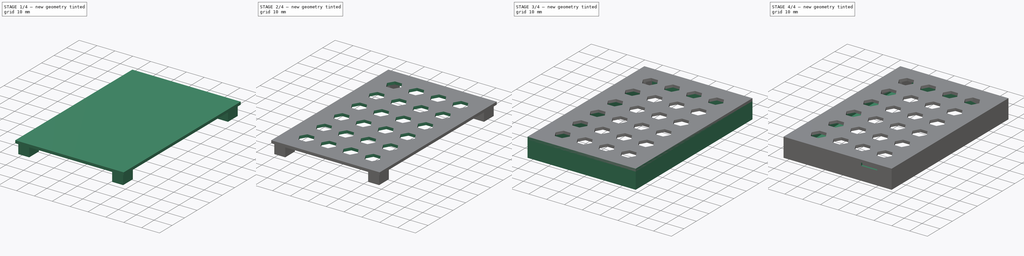
[diagram: build sequence overview — one tinted view per stage of 4, left to right]
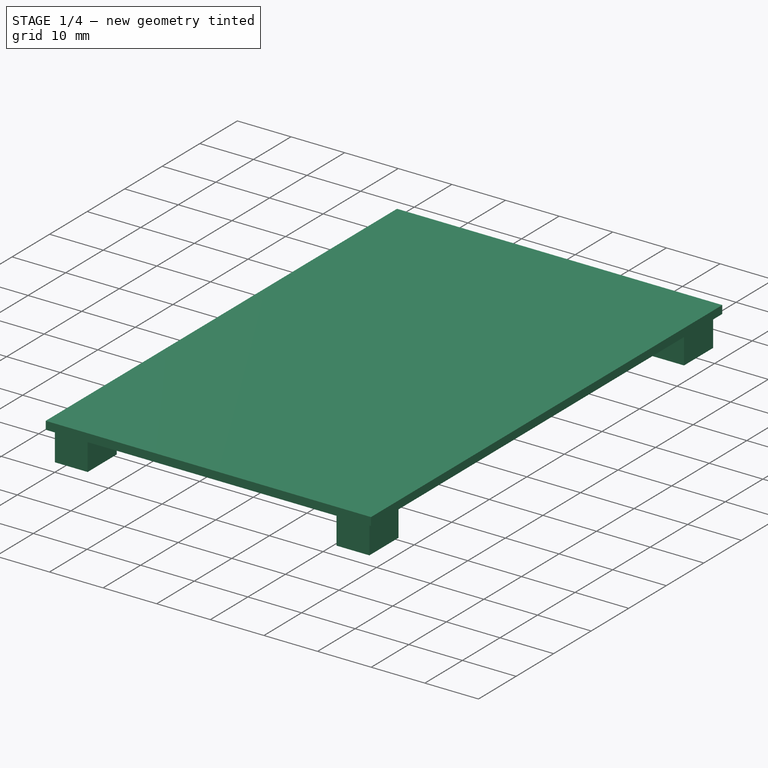
[diagram: stage 1 of 4 — iso view after this stage's code; geometry added in this stage tinted green]
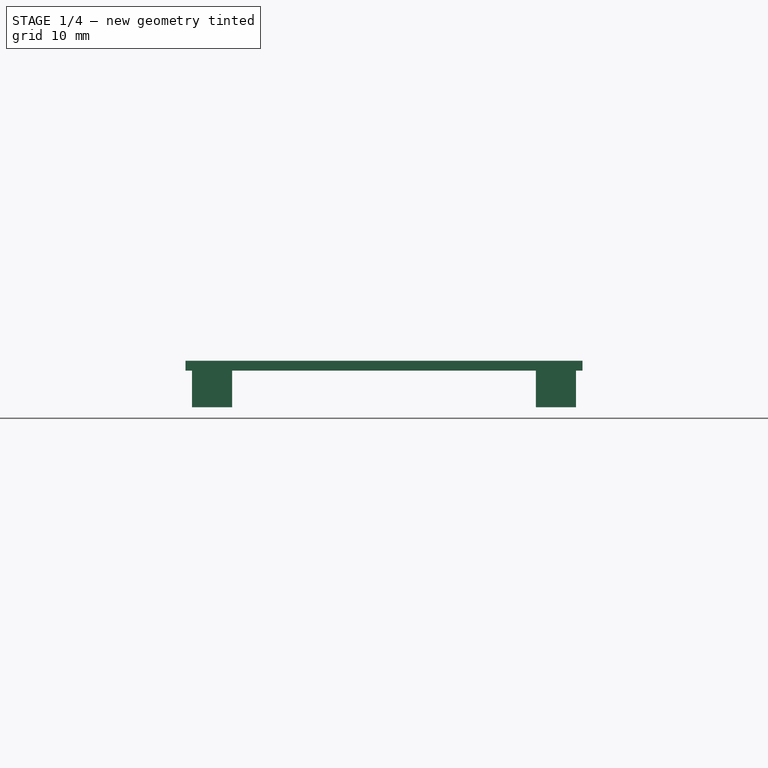
[diagram: stage 1 of 4 — front view after this stage's code; geometry added in this stage tinted green]
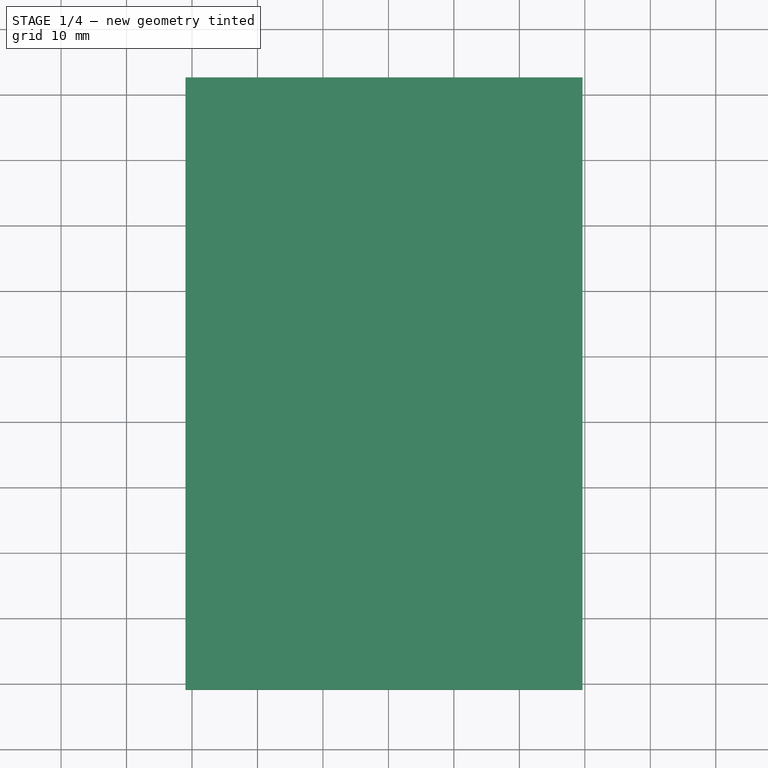
[diagram: stage 1 of 4 — top view after this stage's code; geometry added in this stage tinted green]
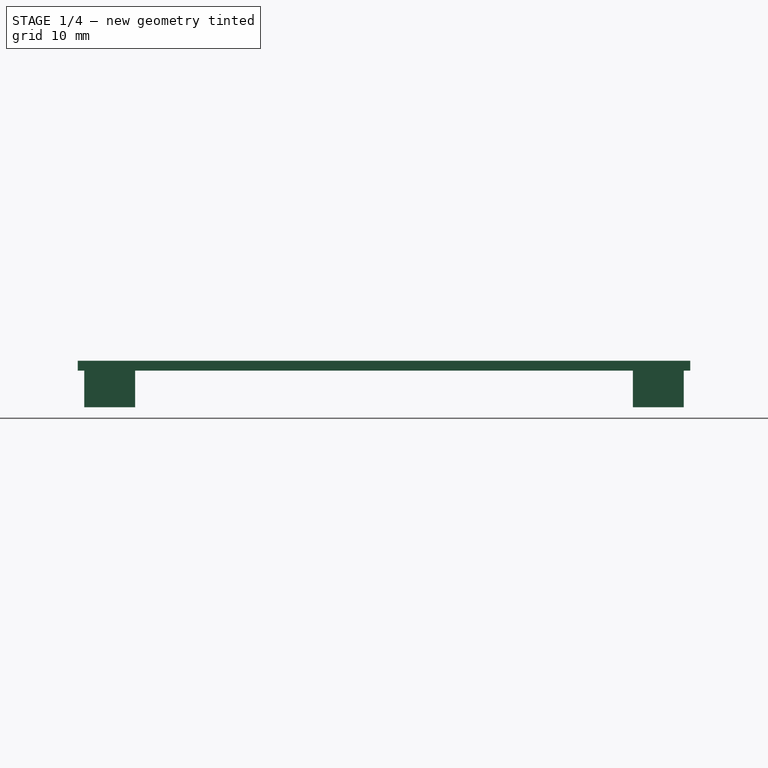
[diagram: stage 1 of 4 — right view after this stage's code; geometry added in this stage tinted green]
FCSTD DOCUMENT  (FreeCAD 1.0R39285 (Git))
Label: wt32-sc01_case1
License: Creative Commons Attribution-NonCommercial-ShareAlike 4.0
LicenseURL: https://creativecommons.org/licenses/by-nc-sa/4.0/
objects: Sketcher::SketchObject×5, PartDesign::Pad×5, PartDesign::Pocket×3, PartDesign::Body×2, PartDesign::LinearPattern×2, PartDesign::ShapeBinder×1, PartDesign::MultiTransform×1
note: 43 computed .brp shape members not serialized (recipe doc carries the construction recipe); baked Part::Feature solids carry a one-line shape summary decoded from their .brp

FEATURE [PartDesign::Body] Body  label="Top"
  AllowCompound = false
  Group = -> [Sketch,Pad,Pocket,Sketch001,Pocket001]
  Origin = -> Origin
  Tip = -> Pocket001
FEATURE [PartDesign::ShapeBinder] ShapeBinder
  Support = -> [Sketch]
  TraceSupport = false
FEATURE [Sketcher::SketchObject] Sketch002
  ArcFitTolerance = 1e-06
  AttachmentSupport = -> [XY_Plane001]
  ExternalGeometry = -> [ShapeBinder]
  FullyConstrained = true
  MakeInternals = false
  MapMode = 5
  sketch-geometry (24):
    g0: LineSegment StartX=0 StartY=0 StartZ=0 EndX=6.12 EndY=0 EndZ=0
    g1: LineSegment StartX=6.12 StartY=0 StartZ=0 EndX=6.12 EndY=7.76 EndZ=0
    g2: LineSegment StartX=6.12 StartY=7.76 StartZ=0 EndX=0 EndY=7.76 EndZ=0
    g3: LineSegment StartX=0 StartY=7.76 StartZ=0 EndX=0 EndY=0 EndZ=0
    g4: LineSegment StartX=58.65 StartY=0 StartZ=0 EndX=58.65 EndY=7.76 EndZ=0
    g5: LineSegment StartX=58.65 StartY=7.76 StartZ=0 EndX=52.53 EndY=7.76 EndZ=0
    g6: LineSegment StartX=52.53 StartY=7.76 StartZ=0 EndX=52.53 EndY=0 EndZ=0
    g7: LineSegment StartX=52.53 StartY=0 StartZ=0 EndX=58.65 EndY=0 EndZ=0
    g8: LineSegment StartX=58.65 StartY=91.55 StartZ=0 EndX=52.53 EndY=91.55 EndZ=0
    g9: LineSegment StartX=52.53 StartY=91.55 StartZ=0 EndX=52.53 EndY=83.79 EndZ=0
    g10: LineSegment StartX=52.53 StartY=83.79 StartZ=0 EndX=58.65 EndY=83.79 EndZ=0
    g11: LineSegment StartX=58.65 StartY=83.79 StartZ=0 EndX=58.65 EndY=91.55 EndZ=0
    g12: LineSegment StartX=0 StartY=91.55 StartZ=0 EndX=0 EndY=83.79 EndZ=0
    g13: LineSegment StartX=0 StartY=83.79 StartZ=0 EndX=6.12 EndY=83.79 EndZ=0
    g14: LineSegment StartX=6.12 StartY=83.79 StartZ=0 EndX=6.12 EndY=91.55 EndZ=0
    g15: LineSegment StartX=6.12 StartY=91.55 StartZ=0 EndX=0 EndY=91.55 EndZ=0
    g16: LineSegment StartX=-1 StartY=92.55 StartZ=0 EndX=59.65 EndY=92.55 EndZ=0
    g17: LineSegment StartX=59.65 StartY=92.55 StartZ=0 EndX=59.65 EndY=-1 EndZ=0
    g18: LineSegment StartX=59.65 StartY=-1 StartZ=0 EndX=-1 EndY=-1 EndZ=0
    g19: LineSegment StartX=-1 StartY=-1 StartZ=0 EndX=-1 EndY=92.55 EndZ=0
    g20: LineSegment StartX=0 StartY=7.76 StartZ=0 EndX=0 EndY=83.79 EndZ=0
    g21: LineSegment StartX=6.12 StartY=91.55 StartZ=0 EndX=52.53 EndY=91.55 EndZ=0
    g22: LineSegment StartX=58.65 StartY=83.79 StartZ=0 EndX=58.65 EndY=7.76 EndZ=0
    g23: LineSegment StartX=6.12 StartY=0 StartZ=0 EndX=52.53 EndY=0 EndZ=0
  constraints (60):
    c: Coincident(g0,g1)
    c: Coincident(g1,g2)
    c: Coincident(g2,g3)
    c: Coincident(g3,g0)
    c: Horizontal(g0)
    c: Horizontal(g2)
    c: Vertical(g1)
    c: Vertical(g3)
    c: Distance(g1,g3) = 6.12
    c: Distance(g0,g2) = 7.76
    c: Coincident(g0,g-1)
    c: Coincident(g4,g5)
    c: Coincident(g5,g6)
    c: Coincident(g6,g7)
    c: Coincident(g7,g4)
    c: Vertical(g4)
    c: Vertical(g6)
    c: Horizontal(g5)
    c: Horizontal(g7)
    c: Distance(g4,g6) = 6.12
    c: Distance(g5,g7) = 7.76
    c: Coincident(g4,g-10)
    c: Coincident(g8,g9)
    c: Coincident(g9,g10)
    c: Coincident(g10,g11)
    c: Coincident(g11,g8)
    c: Horizontal(g8)
    c: Horizontal(g10)
    c: Vertical(g9)
    c: Vertical(g11)
    c: Distance(g9,g11) = 6.12
    c: Distance(g8,g10) = 7.76
    c: Coincident(g8,g-8)
    c: Coincident(g12,g13)
    c: Coincident(g13,g14)
    c: Coincident(g14,g15)
    c: Coincident(g15,g12)
    c: Vertical(g12)
    c: Vertical(g14)
    c: Horizontal(g13)
    c: Horizontal(g15)
    c: Distance(g12,g14) = 6.12
    c: Distance(g13,g15) = 7.76
    c: Coincident(g12,g-7)
    c: Coincident(g-5,g16)
    c: Coincident(g16,g-9)
    c: Coincident(g16,g17)
    c: Coincident(g17,g-9)
    c: Coincident(g17,g18)
    c: Coincident(g18,g-4)
    c: Coincident(g18,g19)
    c: Coincident(g19,g16)
    c: Coincident(g2,g20)
    c: Coincident(g20,g12)
    c: Coincident(g14,g21)
    c: Coincident(g21,g8)
    c: Coincident(g10,g22)
    c: Coincident(g22,g4)
    c: Coincident(g0,g23)
    c: Coincident(g23,g6)
FEATURE [PartDesign::Pad] Pad001
  Direction = (0,0,1)
  Length = 1.5
  Length2 = 10
  Profile = -> Sketch002 [Edge24,Edge21,Edge22,Edge23]
  ReferenceAxis = -> Sketch002 [N_Axis]
  Refine = true
  Reversed = true
  Suppressed = false
  Type = 0
FEATURE [PartDesign::Pad] Pad002
  BaseFeature = -> Pad001
  Direction = (0,0,1)
  Length = 7.1
  Length2 = 10
  Profile = -> Sketch002 [Edge18,Edge19,Edge20,Edge1,Edge6,Edge5,Edge4,Edge3,Edge11,Edge10,Edge9,Edge8,Edge14,Edge13,Edge16,Edge15]
  ReferenceAxis = -> Sketch002 [N_Axis]
  Refine = true
  Reversed = true
  Suppressed = false
  Type = 0
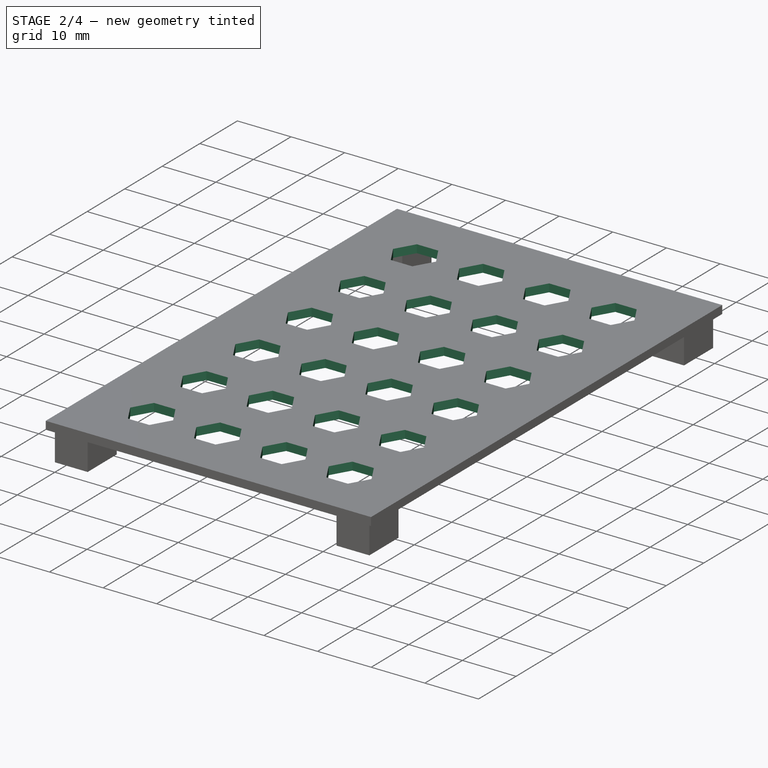
[diagram: stage 2 of 4 — iso view after this stage's code; geometry added in this stage tinted green]
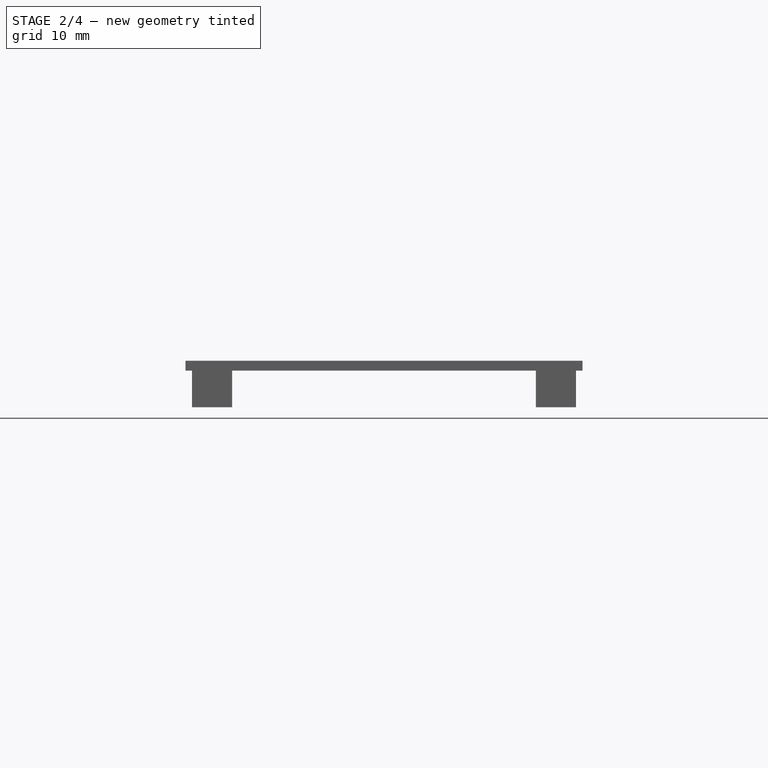
[diagram: stage 2 of 4 — front view after this stage's code; geometry added in this stage tinted green]
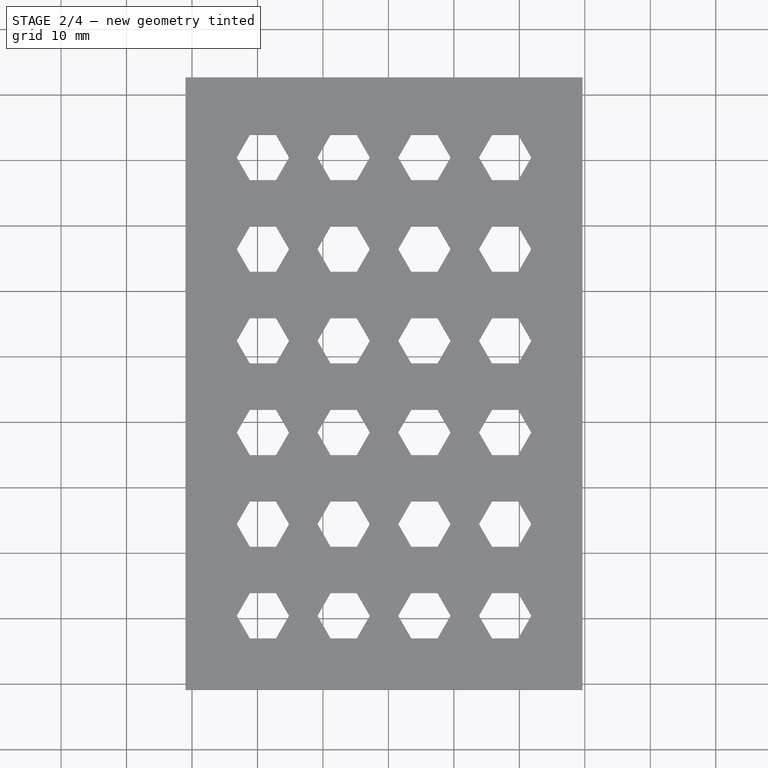
[diagram: stage 2 of 4 — top view after this stage's code; geometry added in this stage tinted green]
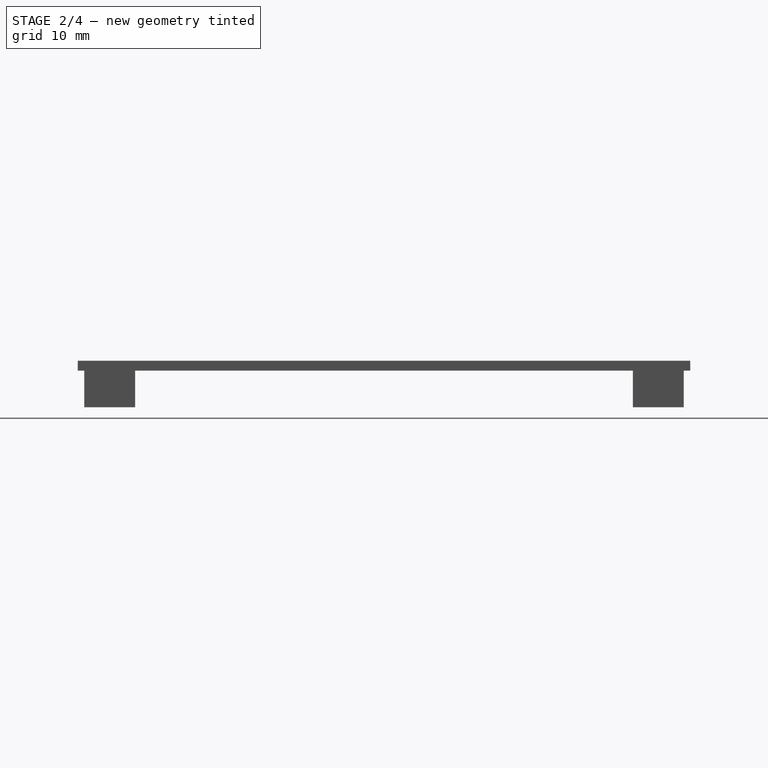
[diagram: stage 2 of 4 — right view after this stage's code; geometry added in this stage tinted green]
FEATURE [Sketcher::SketchObject] Sketch003
  ArcFitTolerance = 1e-06
  AttachmentSupport = -> [XY_Plane001]
  ExternalGeometry = -> [Sketch002]
  FullyConstrained = false
  MakeInternals = false
  MapMode = 5
  sketch-geometry (16):
    g0: LineSegment StartX=58.65 StartY=91.55 StartZ=0 EndX=0 EndY=91.55 EndZ=0
    g1: LineSegment StartX=1 StartY=1 StartZ=0 EndX=57.65 EndY=1 EndZ=0
    g2: LineSegment StartX=57.65 StartY=1 StartZ=0 EndX=57.65 EndY=90.55 EndZ=0
    g3: LineSegment StartX=57.65 StartY=90.55 StartZ=0 EndX=1 EndY=90.55 EndZ=0
    g4: LineSegment StartX=1 StartY=90.55 StartZ=0 EndX=1 EndY=1 EndZ=0
    g5: LineSegment StartX=1 StartY=1 StartZ=0 EndX=1 EndY=0 EndZ=0
    g6: LineSegment StartX=57.65 StartY=1 StartZ=0 EndX=57.65 EndY=0 EndZ=0
    g7: LineSegment StartX=1 StartY=1 StartZ=0 EndX=0 EndY=1 EndZ=0
    g8: LineSegment StartX=57.65 StartY=1 StartZ=0 EndX=58.65 EndY=1 EndZ=0
    g9: LineSegment StartX=0 StartY=0 StartZ=0 EndX=0 EndY=1 EndZ=0
    g10: LineSegment StartX=0 StartY=1 StartZ=0 EndX=0 EndY=91.55 EndZ=0
    g11: LineSegment StartX=58.65 StartY=91.55 StartZ=0 EndX=58.65 EndY=1 EndZ=0
    g12: LineSegment StartX=58.65 StartY=1 StartZ=0 EndX=58.65 EndY=0 EndZ=0
    g13: LineSegment StartX=0 StartY=0 StartZ=0 EndX=1 EndY=0 EndZ=0
    g14: LineSegment StartX=1 StartY=0 StartZ=0 EndX=57.65 EndY=0 EndZ=0
    g15: LineSegment StartX=57.65 StartY=0 StartZ=0 EndX=58.65 EndY=0 EndZ=0
  constraints (39):
    c: Horizontal(g0)
    c: Coincident(g1,g2)
    c: Coincident(g2,g3)
    c: Coincident(g3,g4)
    c: Coincident(g4,g1)
    c: Horizontal(g1)
    c: Horizontal(g3)
    c: Vertical(g2)
    c: Vertical(g4)
    c: Coincident(g5,g1)
    c: Vertical(g5)
    c: Coincident(g6,g1)
    c: Vertical(g6)
    c: Coincident(g7,g1)
    c: Horizontal(g7)
    c: Coincident(g8,g1)
    c: Horizontal(g8)
    c: Coincident(g9,g7)
    c: Vertical(g9)
    c: Coincident(g10,g7)
    c: Coincident(g10,g0)
    c: Vertical(g10)
    c: Coincident(g11,g0)
    c: Coincident(g11,g8)
    c: Vertical(g11)
    c: Coincident(g12,g8)
    c: Vertical(g12)
    c: Distance(g0,g3) = 1
    c: Distance(g11,g2) = 1
    c: Distance(g10,g4) = 1
    c: Coincident(g13,g9)
    c: Coincident(g13,g5)
    c: Horizontal(g13)
    c: Coincident(g14,g5)
    c: Coincident(g14,g6)
    c: Horizontal(g14)
    c: Coincident(g15,g6)
    c: Coincident(g15,g12)
    c: Horizontal(g15)
FEATURE [Sketcher::SketchObject] Sketch004
  ArcFitTolerance = 1e-06
  AttachmentSupport = -> [XY_Plane001]
  FullyConstrained = true
  MakeInternals = false
  MapMode = 5
  sketch-geometry (7):
    g0: LineSegment StartX=14.83 StartY=10.32 StartZ=0 EndX=12.83 EndY=13.7841 EndZ=0
    g1: LineSegment StartX=12.83 StartY=13.7841 StartZ=0 EndX=8.83 EndY=13.7841 EndZ=0
    g2: LineSegment StartX=8.83 StartY=13.7841 StartZ=0 EndX=6.83 EndY=10.32 EndZ=0
    g3: LineSegment StartX=6.83 StartY=10.32 StartZ=0 EndX=8.83 EndY=6.8559 EndZ=0
    g4: LineSegment StartX=8.83 StartY=6.8559 StartZ=0 EndX=12.83 EndY=6.8559 EndZ=0
    g5: LineSegment StartX=12.83 StartY=6.8559 StartZ=0 EndX=14.83 EndY=10.32 EndZ=0
    g6: Circle [constr] CenterX=10.83 CenterY=10.32 CenterZ=0 NormalX=0 NormalY=0 NormalZ=1 AngleXU=0 Radius=4
  constraints (17):
    c: Coincident(g0,g1)
    c: Coincident(g1,g2)
    c: Coincident(g2,g3)
    c: Coincident(g3,g4)
    c: Coincident(g4,g5)
    c: Coincident(g5,g0)
    c: Equal(g0, g1-g5) x5
    c: PointOnObject(g0,g6)
    c: PointOnObject(g1,g6)
    c: PointOnObject(g2,g6)
    c: PointOnObject(g3,g6)
    c: PointOnObject(g4,g6)
    c: PointOnObject(g5,g6)
    c: Radius(g6) = 4
    c: Distance(g6,g-2) = 10.83
    c: Parallel(g-1,g4)
    c: Distance(g6,g-1) = 10.32
FEATURE [PartDesign::Pocket] Pocket002
  BaseFeature = -> Pad002
  Direction = (0,0,-1)
  Length = 5
  Length2 = 5
  Profile = -> Sketch004
  ReferenceAxis = -> Sketch004 [N_Axis]
  Refine = true
  Suppressed = false
  Type = 0
FEATURE [PartDesign::LinearPattern] LinearPattern
  Direction = -> Sketch004 [H_Axis]
  Length = 37
  Mode = 0
  Occurrences = 4
  Offset = 12.3333
  Refine = true
  Suppressed = false
  TransformMode = 0
FEATURE [PartDesign::LinearPattern] LinearPattern001
  Direction = -> Sketch004 [V_Axis]
  Length = 70
  Mode = 0
  Occurrences = 6
  Offset = 14
  Refine = true
  Suppressed = false
  TransformMode = 0
FEATURE [PartDesign::MultiTransform] MultiTransform
  BaseFeature = -> Pocket002
  Originals = -> [Pocket002]
  Refine = true
  Suppressed = false
  TransformMode = 0
  Transformations = -> [LinearPattern,LinearPattern001]
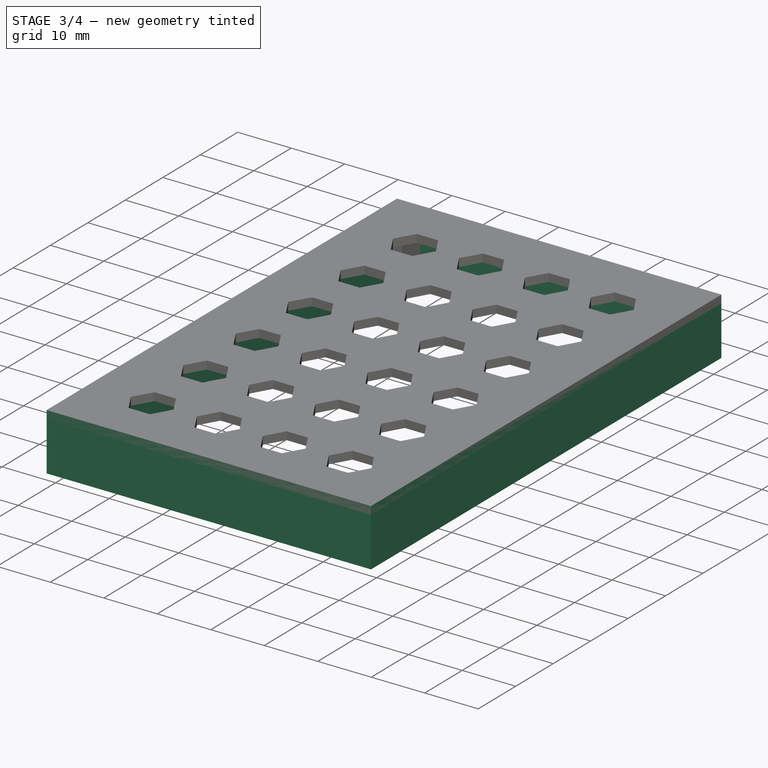
[diagram: stage 3 of 4 — iso view after this stage's code; geometry added in this stage tinted green]
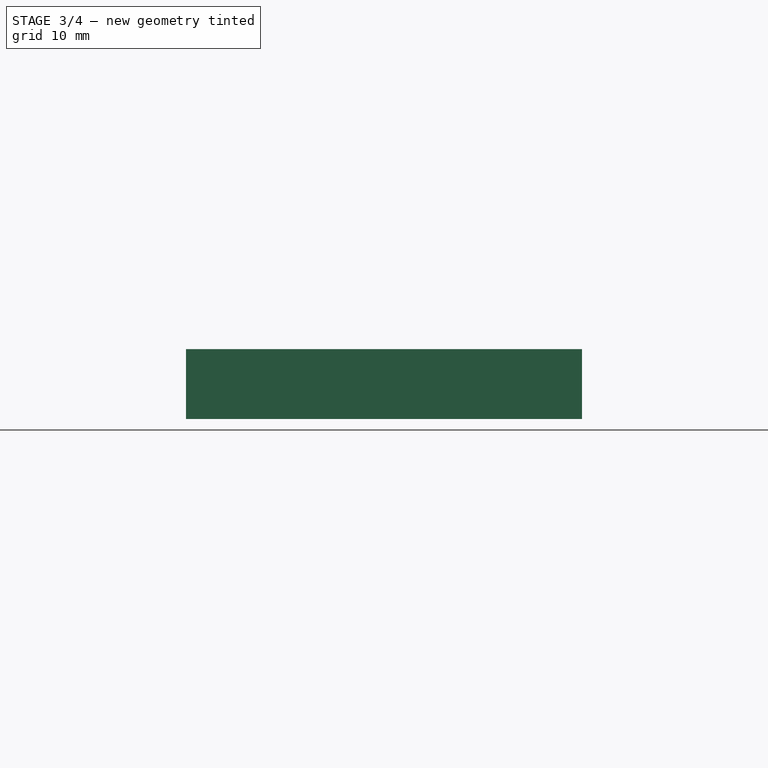
[diagram: stage 3 of 4 — front view after this stage's code; geometry added in this stage tinted green]
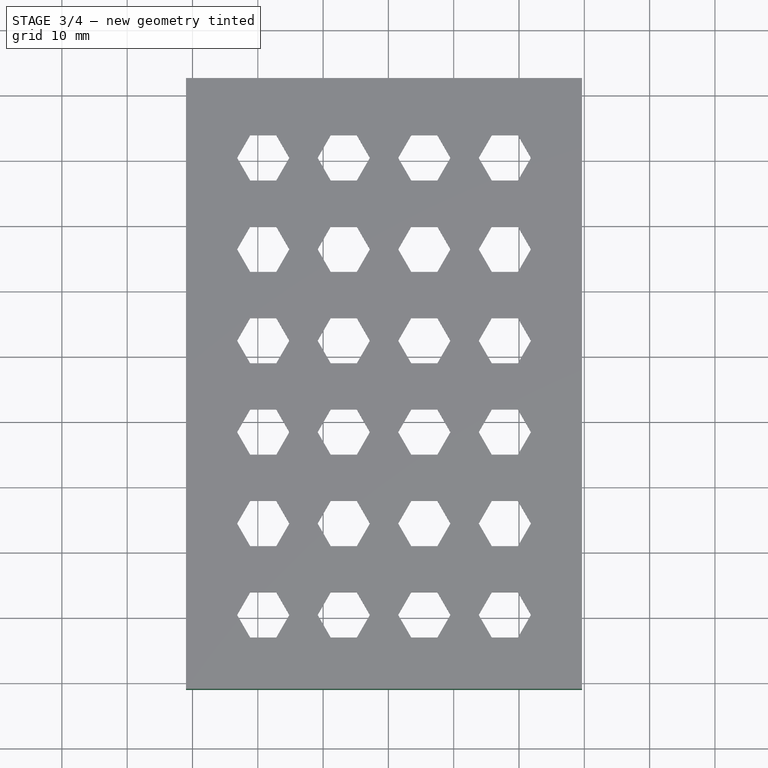
[diagram: stage 3 of 4 — top view after this stage's code; geometry added in this stage tinted green]
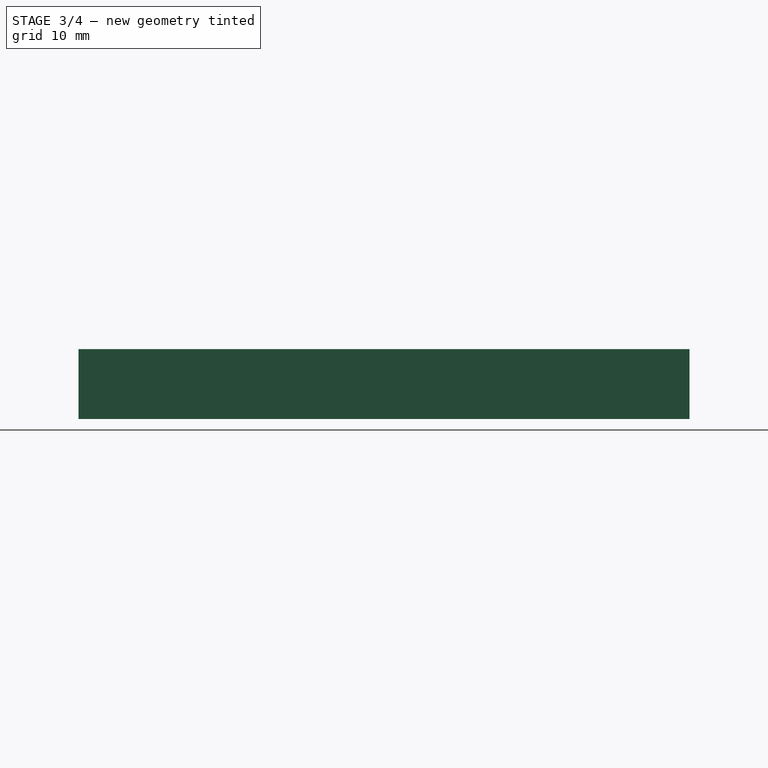
[diagram: stage 3 of 4 — right view after this stage's code; geometry added in this stage tinted green]
FEATURE [Sketcher::SketchObject] Sketch
  ArcFitTolerance = 1e-06
  AttachmentSupport = -> [XY_Plane]
  FullyConstrained = true
  MakeInternals = false
  MapMode = 5
  sketch-geometry (16):
    g0: LineSegment StartX=0 StartY=0 StartZ=0 EndX=58.65 EndY=0 EndZ=0
    g1: LineSegment StartX=58.65 StartY=0 StartZ=0 EndX=58.65 EndY=91.55 EndZ=0
    g2: LineSegment StartX=58.65 StartY=91.55 StartZ=0 EndX=0 EndY=91.55 EndZ=0
    g3: LineSegment StartX=0 StartY=91.55 StartZ=0 EndX=0 EndY=0 EndZ=0
    g4: LineSegment StartX=-1 StartY=-1 StartZ=0 EndX=59.65 EndY=-1 EndZ=0
    g5: LineSegment StartX=59.65 StartY=-1 StartZ=0 EndX=59.65 EndY=92.55 EndZ=0
    g6: LineSegment StartX=59.65 StartY=92.55 StartZ=0 EndX=-1 EndY=92.55 EndZ=0
    g7: LineSegment StartX=-1 StartY=92.55 StartZ=0 EndX=-1 EndY=-1 EndZ=0
    g8: LineSegment [constr] StartX=0 StartY=0 StartZ=0 EndX=-1 EndY=-1 EndZ=0
    g9: LineSegment [constr] StartX=58.65 StartY=0 StartZ=0 EndX=59.65 EndY=-1 EndZ=0
    g10: LineSegment [constr] StartX=58.65 StartY=91.55 StartZ=0 EndX=59.65 EndY=92.55 EndZ=0
    g11: LineSegment [constr] StartX=0 StartY=91.55 StartZ=0 EndX=-1 EndY=92.55 EndZ=0
    g12: LineSegment StartX=3 StartY=88.55 StartZ=0 EndX=3 EndY=3 EndZ=0
    g13: LineSegment StartX=3 StartY=3 StartZ=0 EndX=55.65 EndY=3 EndZ=0
    g14: LineSegment StartX=55.65 StartY=3 StartZ=0 EndX=55.65 EndY=88.55 EndZ=0
    g15: LineSegment StartX=55.65 StartY=88.55 StartZ=0 EndX=3 EndY=88.55 EndZ=0
  constraints (43):
    c: Coincident(g0,g1)
    c: Coincident(g1,g2)
    c: Coincident(g2,g3)
    c: Coincident(g3,g0)
    c: Horizontal(g0)
    c: Horizontal(g2)
    c: Vertical(g1)
    c: Vertical(g3)
    c: Coincident(g4,g5)
    c: Coincident(g5,g6)
    c: Coincident(g6,g7)
    c: Coincident(g7,g4)
    c: Horizontal(g4)
    c: Horizontal(g6)
    c: Vertical(g5)
    c: Vertical(g7)
    c: Coincident(g8,g0)
    c: Coincident(g8,g4)
    c: Coincident(g9,g1)
    c: Coincident(g9,g5)
    c: Coincident(g10,g2)
    c: Coincident(g10,g6)
    c: Coincident(g11,g3)
    c: Coincident(g11,g7)
    c: Perpendicular(g8,g9)
    c: Perpendicular(g9,g10)
    c: Perpendicular(g10,g11)
    c: Distance(g1,g3) = 58.65
    c: Distance(g0,g2) = 91.55
    c: Distance(g4,g0) = 1
    c: Coincident(g0,g-1)
    c: Vertical(g12)
    c: Coincident(g12,g13)
    c: Horizontal(g13)
    c: Coincident(g13,g14)
    c: Vertical(g14)
    c: Coincident(g14,g15)
    c: Coincident(g15,g12)
    c: Horizontal(g15)
    c: Distance(g7,g12) = 4
    c: Distance(g5,g14) = 4
    c: Distance(g6,g15) = 4
    c: Distance(g4,g13) = 4
FEATURE [PartDesign::Pad] Pad
  Direction = (0,0,1)
  Length = 10.7
  Length2 = 10
  Profile = -> Sketch [Edge8,Edge5,Edge7,Edge6,Edge11,Edge12,Edge9,Edge10]
  ReferenceAxis = -> Sketch [N_Axis]
  Refine = true
  Reversed = true
  Suppressed = false
  Type = 0
FEATURE [PartDesign::Pad] Pad003
  BaseFeature = -> MultiTransform
  Direction = (0,0,1)
  Length = 5
  Length2 = 10
  Profile = -> Sketch003 [Edge6,Edge3,Edge10,Edge8,Edge15,Edge1,Edge9,Edge2]
  ReferenceAxis = -> Sketch003 [N_Axis]
  Refine = true
  Reversed = true
  Suppressed = false
  Type = 0
FEATURE [PartDesign::Pad] Pad004
  BaseFeature = -> Pad003
  Direction = (0,0,1)
  Length = 4
  Length2 = 10
  Profile = -> Sketch003 [Edge11,Edge7,Edge12,Edge16]
  ReferenceAxis = -> Sketch003 [N_Axis]
  Refine = true
  Reversed = true
  Suppressed = false
  Type = 0
FEATURE [PartDesign::Body] Body001  label="Bottom"
  AllowCompound = false
  Group = -> [Sketch002,ShapeBinder,Pad001,Pad002,Sketch003,Sketch004,Pocket002,MultiTransform,LinearPattern,LinearPattern001,Pad003,Pad004]
  Origin = -> Origin001
  Placement = pos=(0,0,0) rot=(0,1,0;3.14159rad)
  Tip = -> Pad004
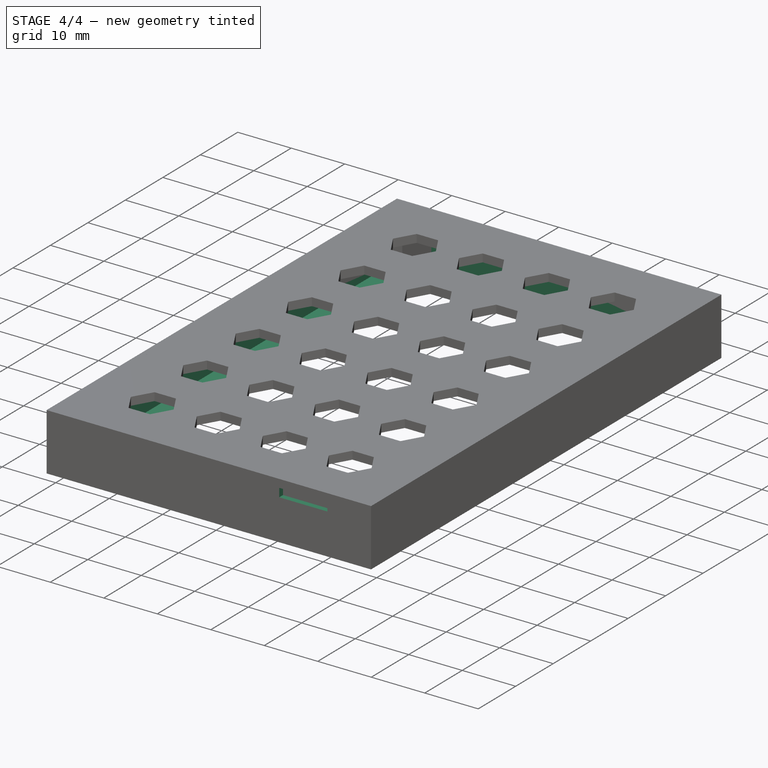
[diagram: stage 4 of 4 — iso view after this stage's code; geometry added in this stage tinted green]
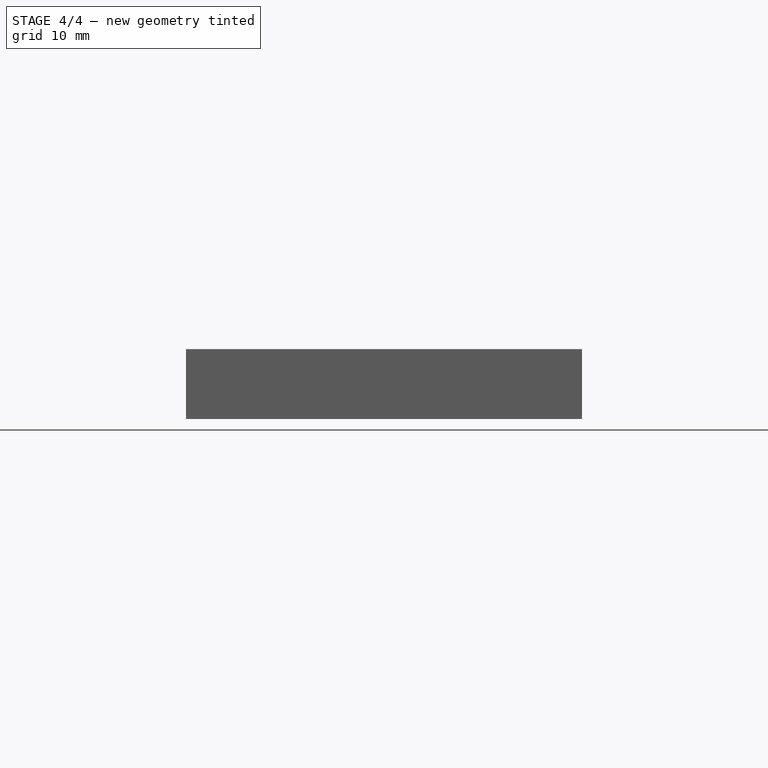
[diagram: stage 4 of 4 — front view after this stage's code; geometry added in this stage tinted green]
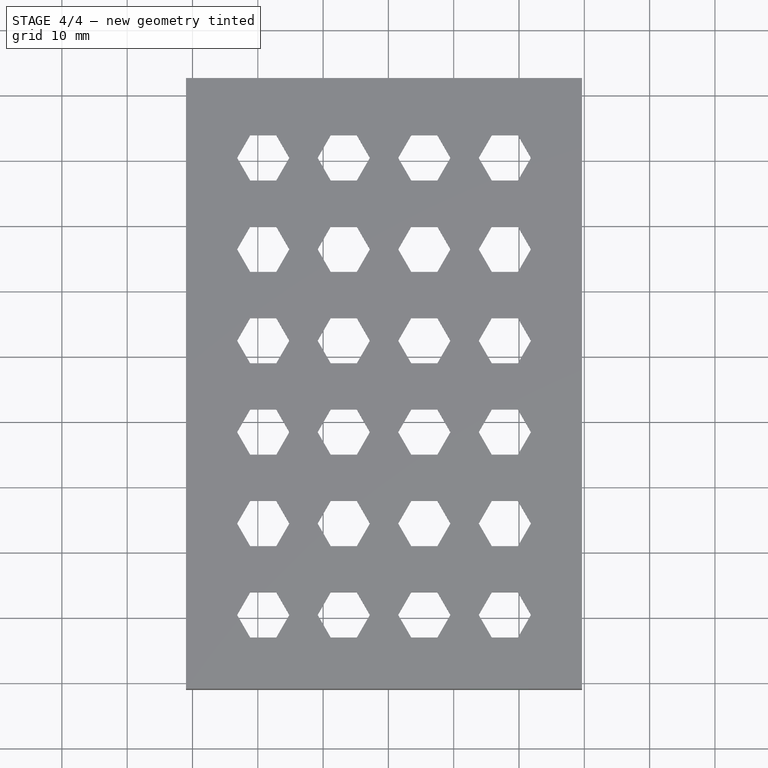
[diagram: stage 4 of 4 — top view after this stage's code; geometry added in this stage tinted green]
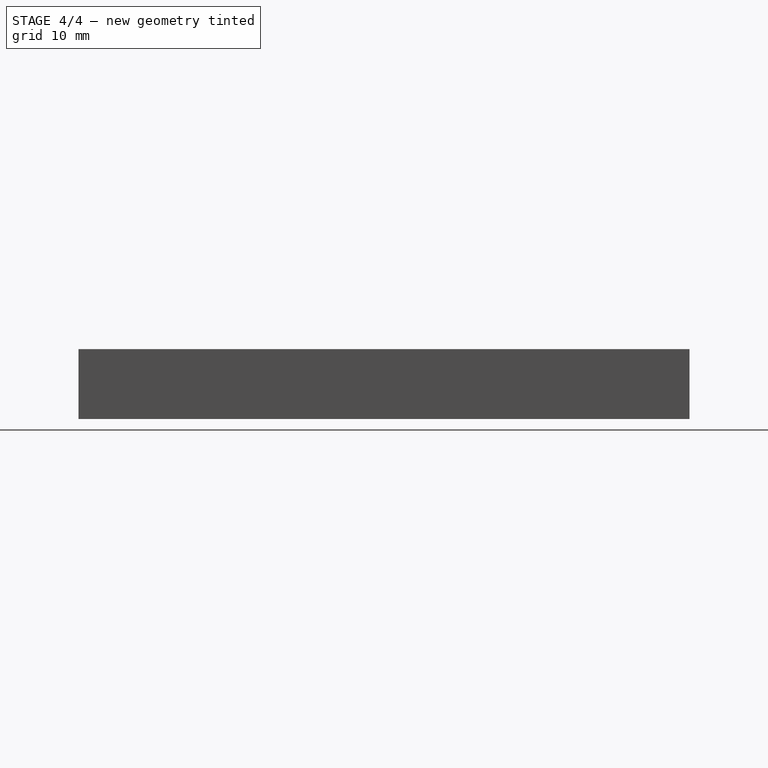
[diagram: stage 4 of 4 — right view after this stage's code; geometry added in this stage tinted green]
FEATURE [PartDesign::Pocket] Pocket
  BaseFeature = -> Pad
  Direction = (0,0,-1)
  Length = 9.7
  Length2 = 5
  Profile = -> Sketch [Edge4,Edge9,Edge3,Edge12,Edge2,Edge11,Edge10,Edge1]
  ReferenceAxis = -> Sketch [N_Axis]
  Refine = true
  Suppressed = false
  Type = 0
FEATURE [Sketcher::SketchObject] Sketch001
  ArcFitTolerance = 1e-06
  AttachmentSupport = -> [XY_Plane]
  FullyConstrained = true
  MakeInternals = false
  MapMode = 5
  sketch-geometry (4):
    g0: LineSegment StartX=42.5 StartY=0 StartZ=0 EndX=42.5 EndY=-1 EndZ=0
    g1: LineSegment StartX=42.5 StartY=-1 StartZ=0 EndX=51.5 EndY=-1 EndZ=0
    g2: LineSegment StartX=51.5 StartY=-1 StartZ=0 EndX=51.5 EndY=0 EndZ=0
    g3: LineSegment StartX=51.5 StartY=0 StartZ=0 EndX=42.5 EndY=0 EndZ=0
  constraints (12):
    c: Coincident(g0,g1)
    c: Coincident(g1,g2)
    c: Coincident(g2,g3)
    c: Coincident(g3,g0)
    c: Vertical(g0)
    c: Vertical(g2)
    c: Horizontal(g1)
    c: Horizontal(g3)
    c: Distance(g0,g2) = 9
    c: Distance(g1,g3) = 1
    c: PointOnObject(g0,g-1)
    c: Distance(g-2,g0) = 42.5
FEATURE [PartDesign::Pocket] Pocket001
  BaseFeature = -> Pocket
  Direction = (0,0,-1)
  Length = 3.1
  Length2 = 5
  Profile = -> Sketch001
  ReferenceAxis = -> Sketch001 [N_Axis]
  Refine = true
  Suppressed = false
  Type = 0
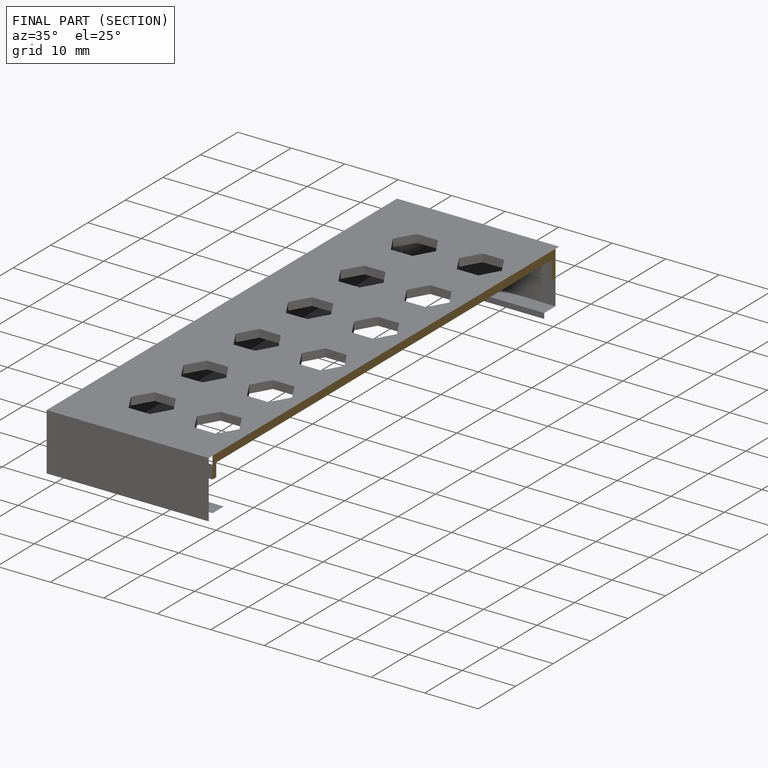
[diagram: finished part — half-section view (interior)]
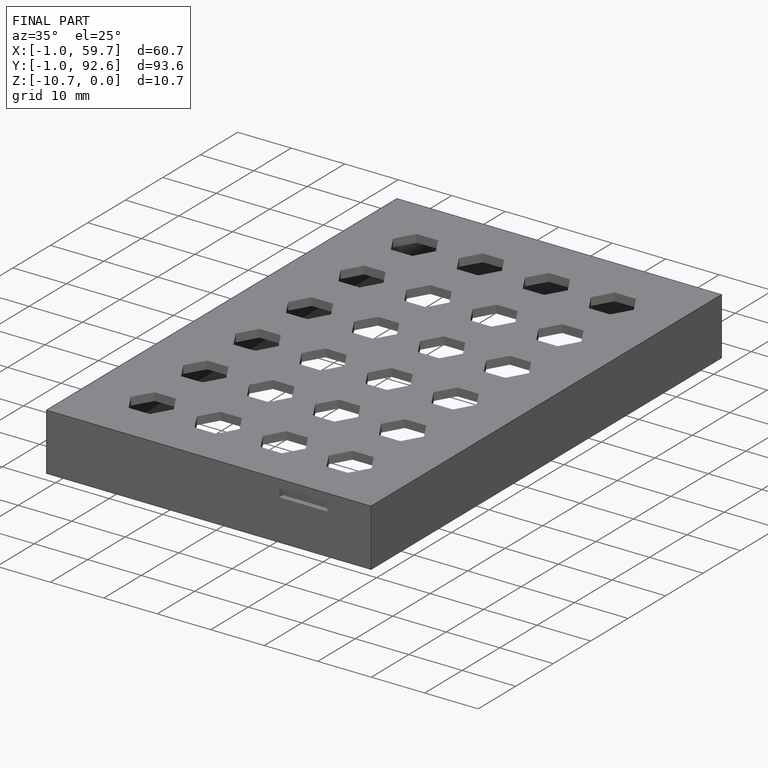
[diagram: finished part — iso view with bounding-box wireframe]
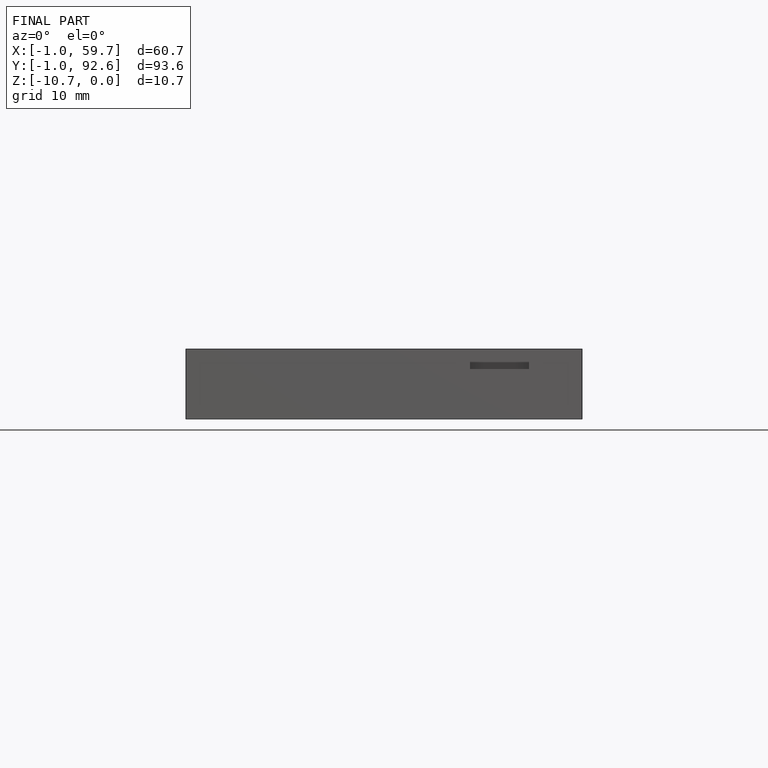
[diagram: finished part — front view with bounding-box wireframe]
